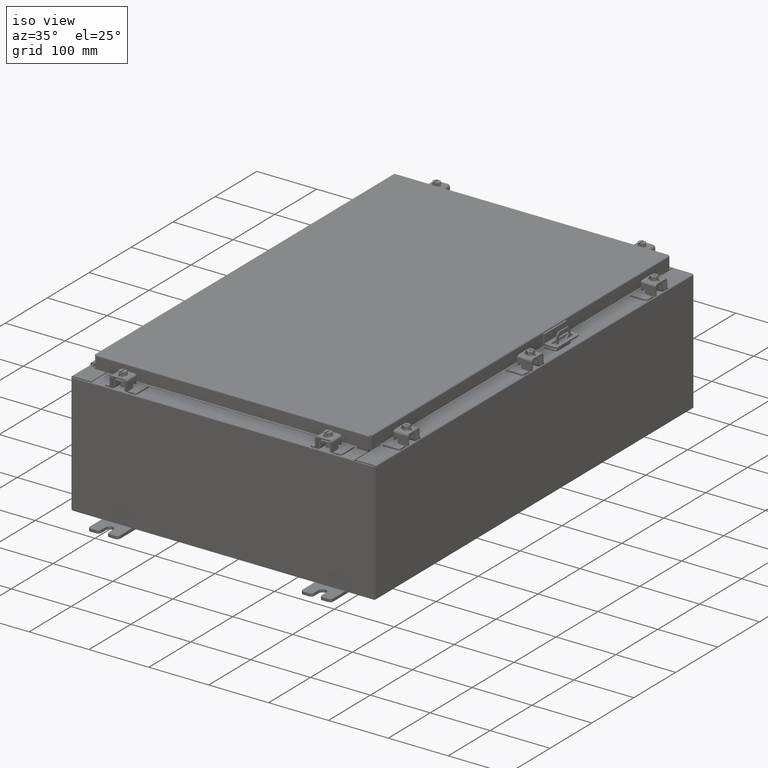
[diagram: clean part render]
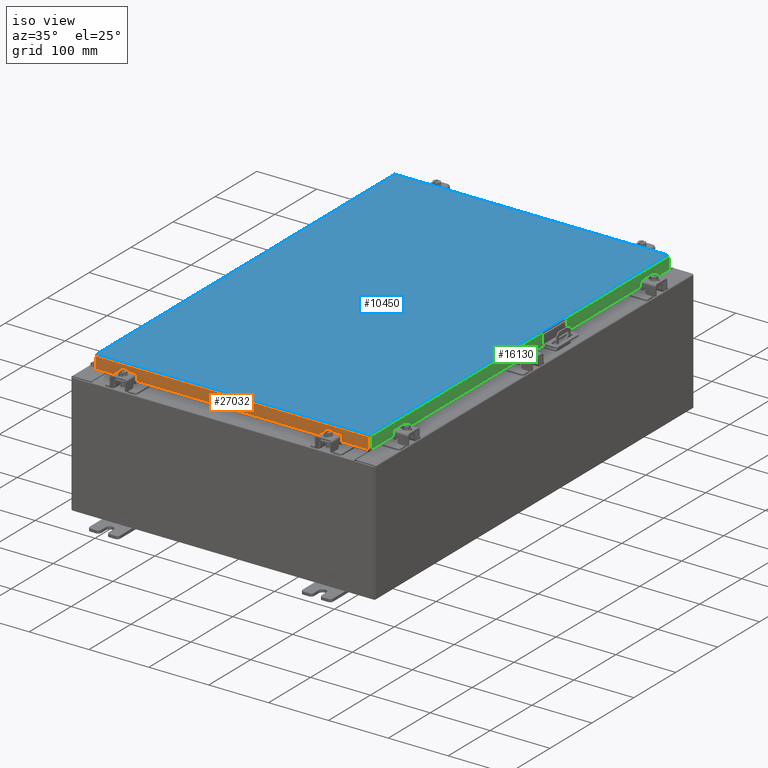
[diagram: same view with three faces highlighted in distinct colors, each labeled with its STEP entity id]
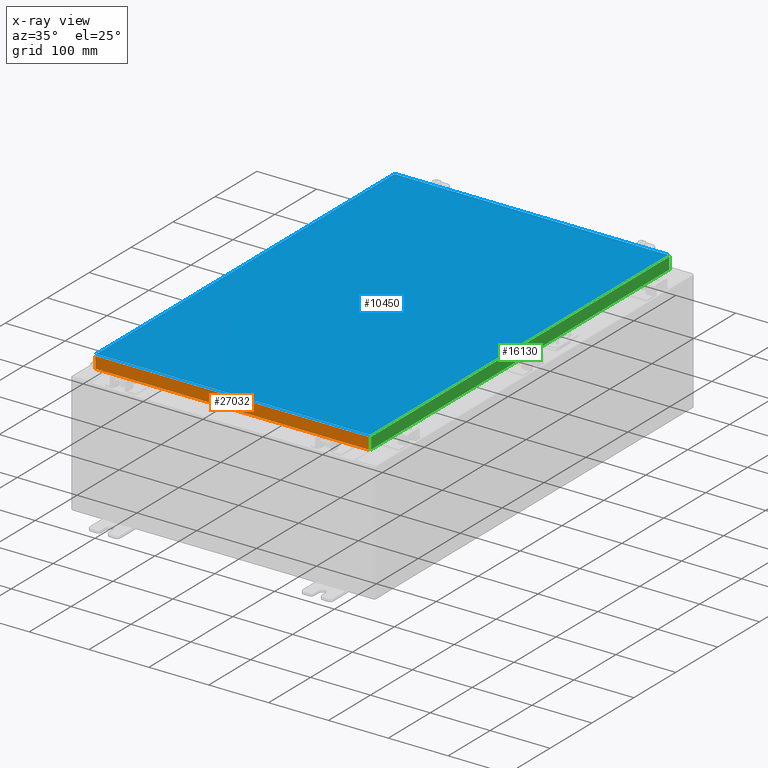
[diagram: x-ray of the same camera — body ghosted, the three highlighted faces saturated]
A machine part, iso view with three faces highlighted in distinct colors.
The next image is the same camera in x-ray (body ghosted, the three faces saturated) — at least one of them is partly hidden behind the body in this view.
Their STEP definitions:

[orange] entity #27032 — the highlighted planar face has unit normal (0, 1, -0).
#975 = CARTESIAN_POINT ( 'NONE',  ( -1.696526354822824800E-015, -14.09399999999999900, 3.999012166344521600E-014 ) ) ;
#1288 = AXIS2_PLACEMENT_3D ( 'NONE', #975, #21170, #3843 ) ;
#1686 = CARTESIAN_POINT ( 'NONE',  ( -8.989157864376265300, -14.09399999999999900, 3.999012166344521600E-014 ) ) ;
#2632 = EDGE_CURVE ( 'NONE', #18831, #2898, #9585, .T. ) ;
#2890 = LINE ( 'NONE', #33056, #25065 ) ;
#2898 = VERTEX_POINT ( 'NONE', #14693 ) ;
#3843 = DIRECTION ( 'NONE',  ( 0.0000000000000000000, 2.818880942772360100E-015, 1.000000000000000000 ) ) ;
#5038 = EDGE_CURVE ( 'NONE', #18831, #36512, #10315, .T. ) ;
#6348 = VECTOR ( 'NONE', #8305, 39.37007874015748100 ) ;
#8305 = DIRECTION ( 'NONE',  ( -1.000000000000000000, 1.203722403024570700E-016, 1.203722403024571000E-016 ) ) ;
#9457 = CARTESIAN_POINT ( 'NONE',  ( -8.239157864376267100, -14.09399999999999900, -0.8500000000000006400 ) ) ;
#9585 = LINE ( 'NONE', #1686, #31773 ) ;
#9750 = CARTESIAN_POINT ( 'NONE',  ( 9.078000000000001200, -14.09400000000000300, -0.8499999999999996400 ) ) ;
#9891 = DIRECTION ( 'NONE',  ( 0.0000000000000000000, -2.818880942772360100E-015, -1.000000000000000000 ) ) ;
#10315 = LINE ( 'NONE', #17940, #17075 ) ;
#11205 = LINE ( 'NONE', #9750, #25732 ) ;
#14180 = VERTEX_POINT ( 'NONE', #9457 ) ;
#14693 = CARTESIAN_POINT ( 'NONE',  ( -8.989157864376265300, -14.09400000000000100, -0.8499999999999975400 ) ) ;
#14927 = LINE ( 'NONE', #16913, #6348 ) ;
#15115 = EDGE_CURVE ( 'NONE', #36512, #32297, #2890, .T. ) ;
#16913 = CARTESIAN_POINT ( 'NONE',  ( 9.078000000000001200, -14.09400000000000300, -0.8499999999999996400 ) ) ;
#17075 = VECTOR ( 'NONE', #17687, 39.37007874015748100 ) ;
#17687 = DIRECTION ( 'NONE',  ( 1.000000000000000000, -1.203722403024567300E-016, -9.633926942233120500E-046 ) ) ;
#17940 = CARTESIAN_POINT ( 'NONE',  ( 9.078000000000001200, -14.09400000000000100, -0.08770000000000007000 ) ) ;
#18231 = PLANE ( 'NONE',  #1288 ) ;
#18831 = VERTEX_POINT ( 'NONE', #35007 ) ;
#21170 = DIRECTION ( 'NONE',  ( 1.203722403024567300E-016, 1.000000000000000000, -2.818880942772360100E-015 ) ) ;
#21541 = LINE ( 'NONE', #35181, #27430 ) ;
#21771 = ORIENTED_EDGE ( 'NONE', *, *, #27587, .F. ) ;
#23038 = DIRECTION ( 'NONE',  ( 0.0000000000000000000, -2.818880942772360100E-015, -1.000000000000000000 ) ) ;
#23129 = EDGE_CURVE ( 'NONE', #32297, #33200, #11205, .T. ) ;
#23288 = ORIENTED_EDGE ( 'NONE', *, *, #15115, .F. ) ;
#23340 = FACE_OUTER_BOUND ( 'NONE', #24523, .T. ) ;
#24523 = EDGE_LOOP ( 'NONE', ( #32807, #36855, #31856, #21771, #36476, #23288 ) ) ;
#25065 = VECTOR ( 'NONE', #9891, 39.37007874015748100 ) ;
#25732 = VECTOR ( 'NONE', #30011, 39.37007874015748100 ) ;
#26428 = DIRECTION ( 'NONE',  ( -1.000000000000000000, 0.0000000000000000000, 0.0000000000000000000 ) ) ;
#27032 = ADVANCED_FACE ( 'NONE', ( #23340 ), #18231, .F. ) ;
#27430 = VECTOR ( 'NONE', #26428, 39.37007874015748100 ) ;
#27587 = EDGE_CURVE ( 'NONE', #33200, #14180, #21541, .T. ) ;
#28086 = CARTESIAN_POINT ( 'NONE',  ( 8.239157864376270600, -14.09399999999999900, -0.8500000000000006400 ) ) ;
#30011 = DIRECTION ( 'NONE',  ( -1.000000000000000000, 1.203722403024570700E-016, 1.203722403024571000E-016 ) ) ;
#30635 = CARTESIAN_POINT ( 'NONE',  ( 8.989157864376270600, -14.09400000000000300, -0.8499999999999996400 ) ) ;
#30715 = EDGE_CURVE ( 'NONE', #14180, #2898, #14927, .T. ) ;
#31773 = VECTOR ( 'NONE', #23038, 39.37007874015748100 ) ;
#31856 = ORIENTED_EDGE ( 'NONE', *, *, #30715, .F. ) ;
#32297 = VERTEX_POINT ( 'NONE', #30635 ) ;
#32807 = ORIENTED_EDGE ( 'NONE', *, *, #5038, .F. ) ;
#33056 = CARTESIAN_POINT ( 'NONE',  ( 8.989157864376270600, -14.09400000000000100, -0.07469999999999978000 ) ) ;
#33200 = VERTEX_POINT ( 'NONE', #28086 ) ;
#35007 = CARTESIAN_POINT ( 'NONE',  ( -8.989157864376265300, -14.09399999999999900, -0.08770000000000007000 ) ) ;
#35181 = CARTESIAN_POINT ( 'NONE',  ( 8.239157864376270600, -14.09399999999999900, -0.8500000000000006400 ) ) ;
#36476 = ORIENTED_EDGE ( 'NONE', *, *, #23129, .F. ) ;
#36512 = VERTEX_POINT ( 'NONE', #37143 ) ;
#36855 = ORIENTED_EDGE ( 'NONE', *, *, #2632, .T. ) ;
#37143 = CARTESIAN_POINT ( 'NONE',  ( 8.989157864376256400, -14.09400000000000100, -0.08770000000000007000 ) ) ;

[blue] entity #10450 — the highlighted planar face has unit normal (0, 0, -1).
#436 = CARTESIAN_POINT ( 'NONE',  ( 8.990300000000001300, 14.00629999999999800, -2.048885995248197400E-016 ) ) ;
#991 = LINE ( 'NONE', #30133, #25841 ) ;
#1167 = VECTOR ( 'NONE', #19853, 39.37007874015748100 ) ;
#1610 = ORIENTED_EDGE ( 'NONE', *, *, #24827, .T. ) ;
#2484 = LINE ( 'NONE', #36030, #24652 ) ;
#4361 = CARTESIAN_POINT ( 'NONE',  ( 8.990300000000001300, -14.00629999999999800, -7.512581982576723400E-016 ) ) ;
#5020 = EDGE_LOOP ( 'NONE', ( #9890, #1610, #33874, #7434 ) ) ;
#5577 = VERTEX_POINT ( 'NONE', #436 ) ;
#5823 = CARTESIAN_POINT ( 'NONE',  ( 0.0000000000000000000, 0.0000000000000000000, 0.0000000000000000000 ) ) ;
#6233 = VERTEX_POINT ( 'NONE', #34814 ) ;
#6416 = EDGE_CURVE ( 'NONE', #6233, #29659, #8773, .T. ) ;
#6632 = EDGE_CURVE ( 'NONE', #29659, #7872, #2484, .T. ) ;
#7434 = ORIENTED_EDGE ( 'NONE', *, *, #6416, .T. ) ;
#7872 = VERTEX_POINT ( 'NONE', #4361 ) ;
#8773 = LINE ( 'NONE', #20163, #1167 ) ;
#9890 = ORIENTED_EDGE ( 'NONE', *, *, #6632, .T. ) ;
#10450 = ADVANCED_FACE ( 'NONE', ( #14363 ), #20226, .F. ) ;
#10547 = CARTESIAN_POINT ( 'NONE',  ( 8.990300000000001300, -14.00629999999999800, -7.512581982576723400E-016 ) ) ;
#12456 = LINE ( 'NONE', #10547, #21091 ) ;
#14363 = FACE_OUTER_BOUND ( 'NONE', #5020, .T. ) ;
#14517 = DIRECTION ( 'NONE',  ( 0.0000000000000000000, 0.0000000000000000000, -1.000000000000000000 ) ) ;
#19853 = DIRECTION ( 'NONE',  ( 0.0000000000000000000, -1.000000000000000000, 0.0000000000000000000 ) ) ;
#20163 = CARTESIAN_POINT ( 'NONE',  ( -8.990299999999997700, 14.00630000000000100, -2.048885995248197400E-016 ) ) ;
#20226 = PLANE ( 'NONE',  #24996 ) ;
#20436 = CARTESIAN_POINT ( 'NONE',  ( -8.990299999999997700, -14.00629999999999800, 1.980589795406590900E-015 ) ) ;
#21091 = VECTOR ( 'NONE', #30810, 39.37007874015748100 ) ;
#21414 = DIRECTION ( 'NONE',  ( -1.000000000000000000, -0.0000000000000000000, -0.0000000000000000000 ) ) ;
#24652 = VECTOR ( 'NONE', #36232, 39.37007874015748100 ) ;
#24827 = EDGE_CURVE ( 'NONE', #7872, #5577, #12456, .T. ) ;
#24996 = AXIS2_PLACEMENT_3D ( 'NONE', #5823, #14517, #34805 ) ;
#25841 = VECTOR ( 'NONE', #21414, 39.37007874015748100 ) ;
#29659 = VERTEX_POINT ( 'NONE', #20436 ) ;
#30133 = CARTESIAN_POINT ( 'NONE',  ( 8.990300000000001300, 14.00629999999999800, -2.048885995248197400E-016 ) ) ;
#30429 = EDGE_CURVE ( 'NONE', #5577, #6233, #991, .T. ) ;
#30810 = DIRECTION ( 'NONE',  ( 0.0000000000000000000, 1.000000000000000000, 0.0000000000000000000 ) ) ;
#33874 = ORIENTED_EDGE ( 'NONE', *, *, #30429, .T. ) ;
#34805 = DIRECTION ( 'NONE',  ( -1.000000000000000000, 0.0000000000000000000, -0.0000000000000000000 ) ) ;
#34814 = CARTESIAN_POINT ( 'NONE',  ( -8.990299999999997700, 14.00630000000000100, -2.048885995248197400E-016 ) ) ;
#36030 = CARTESIAN_POINT ( 'NONE',  ( -8.990299999999996000, -14.00629999999999800, 1.963515745446189200E-015 ) ) ;
#36232 = DIRECTION ( 'NONE',  ( 1.000000000000000000, -0.0000000000000000000, -0.0000000000000000000 ) ) ;

[green] entity #16130 — the highlighted planar face has unit normal (1, 0, 0).
#2174 = LINE ( 'NONE', #16038, #24316 ) ;
#3079 = VECTOR ( 'NONE', #16549, 39.37007874015748100 ) ;
#4286 = ORIENTED_EDGE ( 'NONE', *, *, #23344, .F. ) ;
#6452 = CARTESIAN_POINT ( 'NONE',  ( 9.077999999999995900, 13.25515786437627100, -0.8500000000000007500 ) ) ;
#7296 = DIRECTION ( 'NONE',  ( -2.818880942772360100E-015, -6.982962677686265900E-015, 1.000000000000000000 ) ) ;
#7811 = CARTESIAN_POINT ( 'NONE',  ( 9.078000000000001200, -14.00515786437626900, -0.07469999999999978000 ) ) ;
#9174 = VECTOR ( 'NONE', #31375, 39.37007874015748100 ) ;
#9308 = CARTESIAN_POINT ( 'NONE',  ( 9.078000000000001200, 3.399788123235819300E-018, -0.08770000000000061100 ) ) ;
#9786 = EDGE_CURVE ( 'NONE', #36955, #35129, #10366, .T. ) ;
#9870 = CARTESIAN_POINT ( 'NONE',  ( 9.078000000000003000, -14.00515786437626400, -0.8499999999999996400 ) ) ;
#10366 = LINE ( 'NONE', #9308, #32577 ) ;
#10488 = FACE_OUTER_BOUND ( 'NONE', #21986, .T. ) ;
#11463 = EDGE_CURVE ( 'NONE', #23410, #35522, #37051, .T. ) ;
#11612 = PLANE ( 'NONE',  #17367 ) ;
#12818 = CARTESIAN_POINT ( 'NONE',  ( 9.078000000000003000, -14.09399999999999900, -0.8499999999999996400 ) ) ;
#15383 = EDGE_CURVE ( 'NONE', #35522, #37017, #17759, .T. ) ;
#15734 = ORIENTED_EDGE ( 'NONE', *, *, #15383, .F. ) ;
#15759 = DIRECTION ( 'NONE',  ( 0.0000000000000000000, -1.000000000000000000, 0.0000000000000000000 ) ) ;
#16038 = CARTESIAN_POINT ( 'NONE',  ( 9.078000000000001200, 14.00515786437626900, 1.236481095165428500E-013 ) ) ;
#16130 = ADVANCED_FACE ( 'NONE', ( #10488 ), #11612, .T. ) ;
#16382 = VECTOR ( 'NONE', #15759, 39.37007874015748100 ) ;
#16549 = DIRECTION ( 'NONE',  ( -2.818880942772360100E-015, -6.982962677686265900E-015, 1.000000000000000000 ) ) ;
#17269 = LINE ( 'NONE', #12818, #16382 ) ;
#17367 = AXIS2_PLACEMENT_3D ( 'NONE', #31901, #34836, #17445 ) ;
#17445 = DIRECTION ( 'NONE',  ( 2.818880942772360100E-015, 0.0000000000000000000, -1.000000000000000000 ) ) ;
#17759 = LINE ( 'NONE', #34300, #9174 ) ;
#18444 = LINE ( 'NONE', #7811, #3079 ) ;
#19955 = CARTESIAN_POINT ( 'NONE',  ( 9.078000000000001200, -14.00515786437626900, -0.08770000000000115200 ) ) ;
#21422 = VERTEX_POINT ( 'NONE', #9870 ) ;
#21986 = EDGE_LOOP ( 'NONE', ( #4286, #25305, #15734, #26873, #31992, #30897 ) ) ;
#23344 = EDGE_CURVE ( 'NONE', #21422, #35129, #18444, .T. ) ;
#23410 = VERTEX_POINT ( 'NONE', #37083 ) ;
#23858 = EDGE_CURVE ( 'NONE', #23410, #36955, #2174, .T. ) ;
#24316 = VECTOR ( 'NONE', #7296, 39.37007874015748100 ) ;
#24445 = CARTESIAN_POINT ( 'NONE',  ( 9.078000000000001200, 14.00515786437626500, -0.08770000000000061100 ) ) ;
#25305 = ORIENTED_EDGE ( 'NONE', *, *, #36265, .F. ) ;
#26873 = ORIENTED_EDGE ( 'NONE', *, *, #11463, .F. ) ;
#30246 = VECTOR ( 'NONE', #35751, 39.37007874015748100 ) ;
#30525 = CARTESIAN_POINT ( 'NONE',  ( 9.077999999999995900, -13.25515786437626400, -0.8500000000000007500 ) ) ;
#30897 = ORIENTED_EDGE ( 'NONE', *, *, #9786, .T. ) ;
#31375 = DIRECTION ( 'NONE',  ( 0.0000000000000000000, -1.000000000000000000, 0.0000000000000000000 ) ) ;
#31901 = CARTESIAN_POINT ( 'NONE',  ( 9.078000000000001200, 0.0000000000000000000, 2.585061485449906900E-014 ) ) ;
#31992 = ORIENTED_EDGE ( 'NONE', *, *, #23858, .T. ) ;
#32488 = DIRECTION ( 'NONE',  ( 1.092770575832425100E-031, -1.000000000000000000, -3.876611314976959400E-017 ) ) ;
#32577 = VECTOR ( 'NONE', #32488, 39.37007874015748100 ) ;
#32812 = CARTESIAN_POINT ( 'NONE',  ( 9.078000000000003000, -14.09399999999999900, -0.8499999999999996400 ) ) ;
#34300 = CARTESIAN_POINT ( 'NONE',  ( 9.077999999999995900, 13.25515786437627200, -0.8500000000000007500 ) ) ;
#34836 = DIRECTION ( 'NONE',  ( 1.000000000000000000, 0.0000000000000000000, 2.818880942772360100E-015 ) ) ;
#35129 = VERTEX_POINT ( 'NONE', #19955 ) ;
#35522 = VERTEX_POINT ( 'NONE', #6452 ) ;
#35751 = DIRECTION ( 'NONE',  ( 0.0000000000000000000, -1.000000000000000000, 0.0000000000000000000 ) ) ;
#36265 = EDGE_CURVE ( 'NONE', #37017, #21422, #17269, .T. ) ;
#36955 = VERTEX_POINT ( 'NONE', #24445 ) ;
#37017 = VERTEX_POINT ( 'NONE', #30525 ) ;
#37051 = LINE ( 'NONE', #32812, #30246 ) ;
#37083 = CARTESIAN_POINT ( 'NONE',  ( 9.078000000000003000, 14.00515786437627200, -0.8499999999999996400 ) ) ;